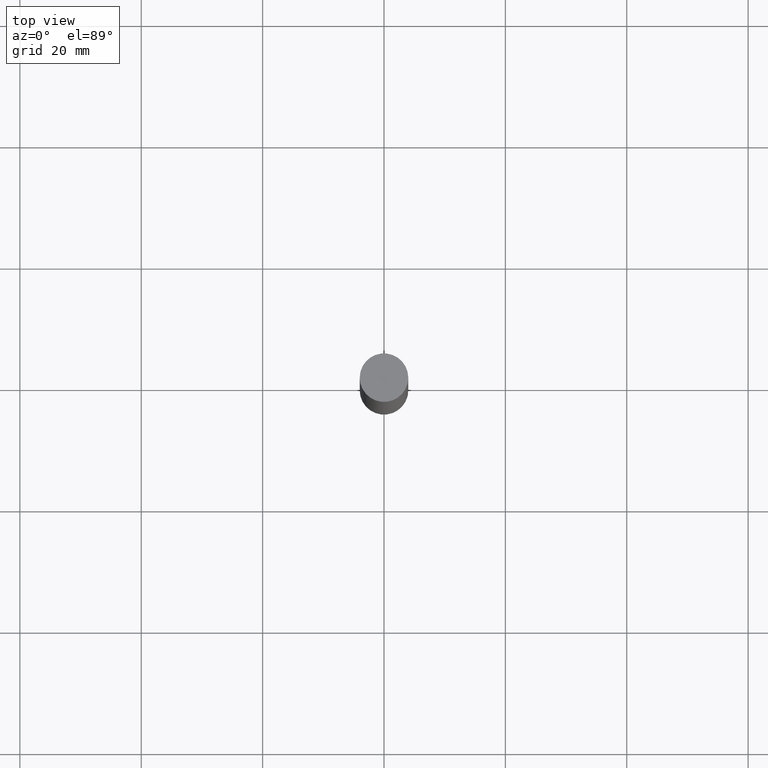
[diagram: clean part render]
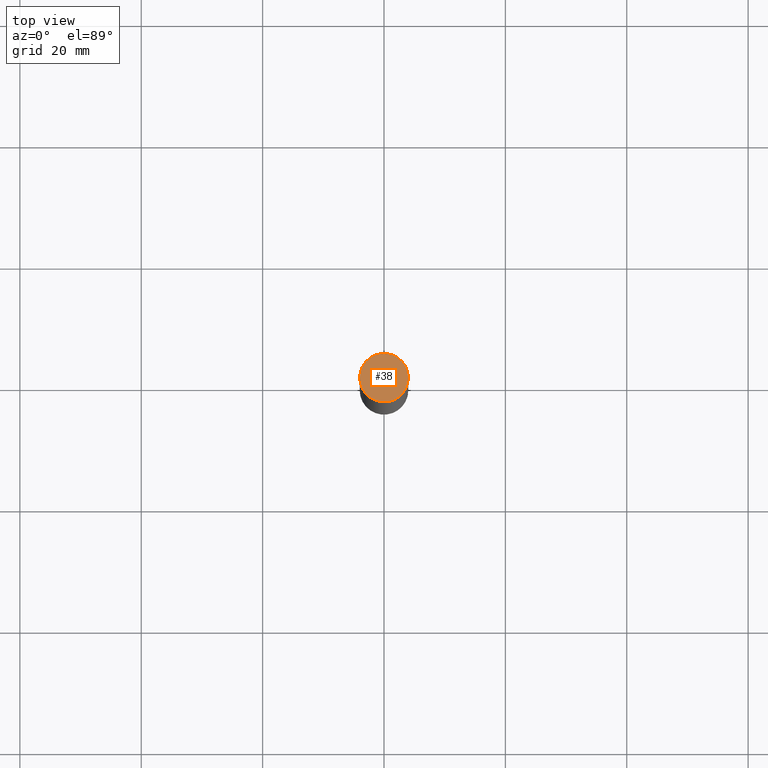
[diagram: same view with one face highlighted and labeled with its STEP entity id]
A machine part, top view. The second image highlights one B-rep face of the part: STEP entity #38.
In plain terms, the highlighted planar face has unit normal (0, 0, 1).
Its self-contained STEP definition (entity closure, byte-faithful):
#16=PLANE('',#45);
#20=FACE_OUTER_BOUND('',#24,.T.);
#24=EDGE_LOOP('',(#34));
#25=CIRCLE('',#42,3.999999999984);
#27=VERTEX_POINT('',#60);
#29=EDGE_CURVE('',#27,#27,#25,.T.);
#34=ORIENTED_EDGE('',*,*,#29,.T.);
#38=ADVANCED_FACE('',(#20),#16,.T.);
#42=AXIS2_PLACEMENT_3D('',#61,#50,#51);
#45=AXIS2_PLACEMENT_3D('',#65,#56,#57);
#50=DIRECTION('center_axis',(0.,0.,1.));
#51=DIRECTION('ref_axis',(1.,0.,0.));
#56=DIRECTION('center_axis',(0.,0.,1.));
#57=DIRECTION('ref_axis',(1.,0.,0.));
#60=CARTESIAN_POINT('',(-3.999999999984,0.,120.));
#61=CARTESIAN_POINT('Origin',(0.,0.,120.));
#65=CARTESIAN_POINT('Origin',(-4.80000472477425,-4.80000472479378,120.));